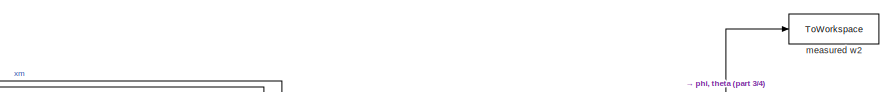
[diagram: root canvas - part 1/4, top center region]
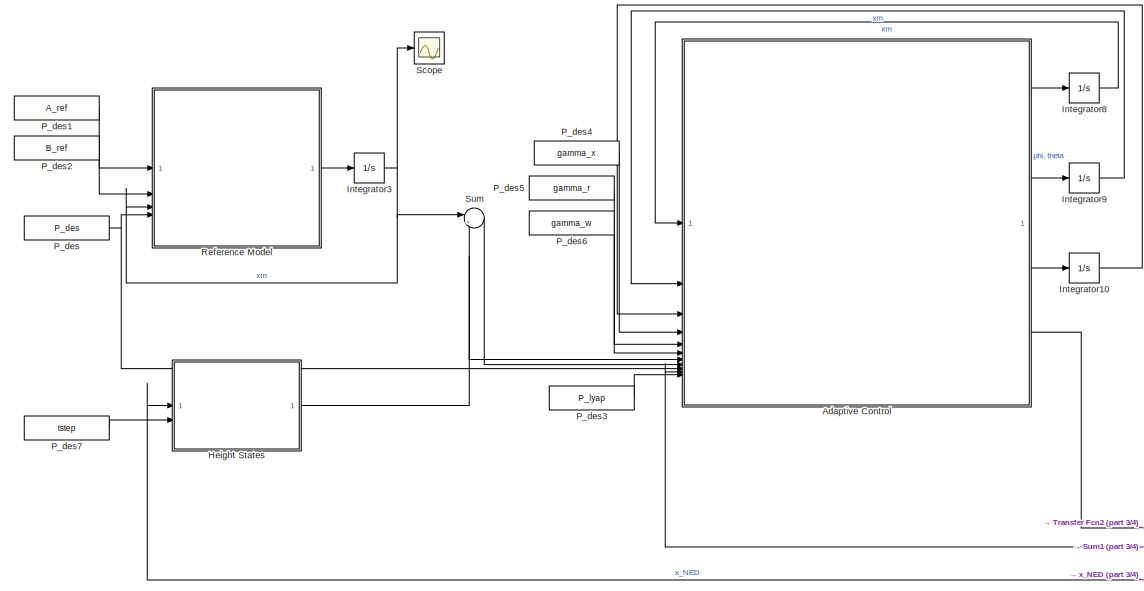
[diagram: root canvas - part 2/4, middle left region]
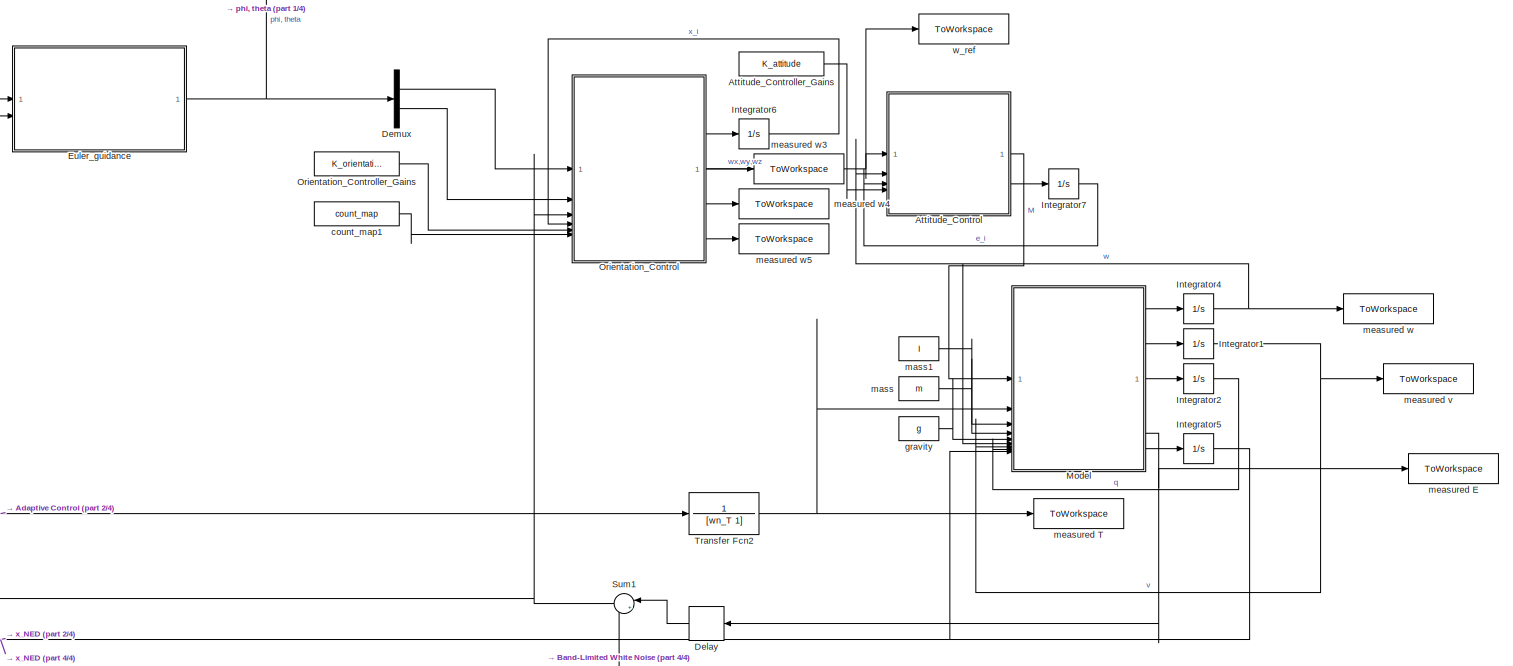
[diagram: root canvas - part 3/4, right side, full height]
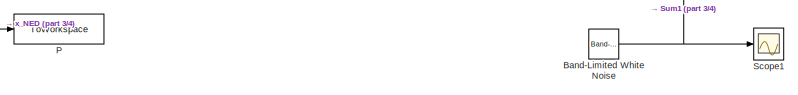
[diagram: root canvas - part 4/4, bottom center region]
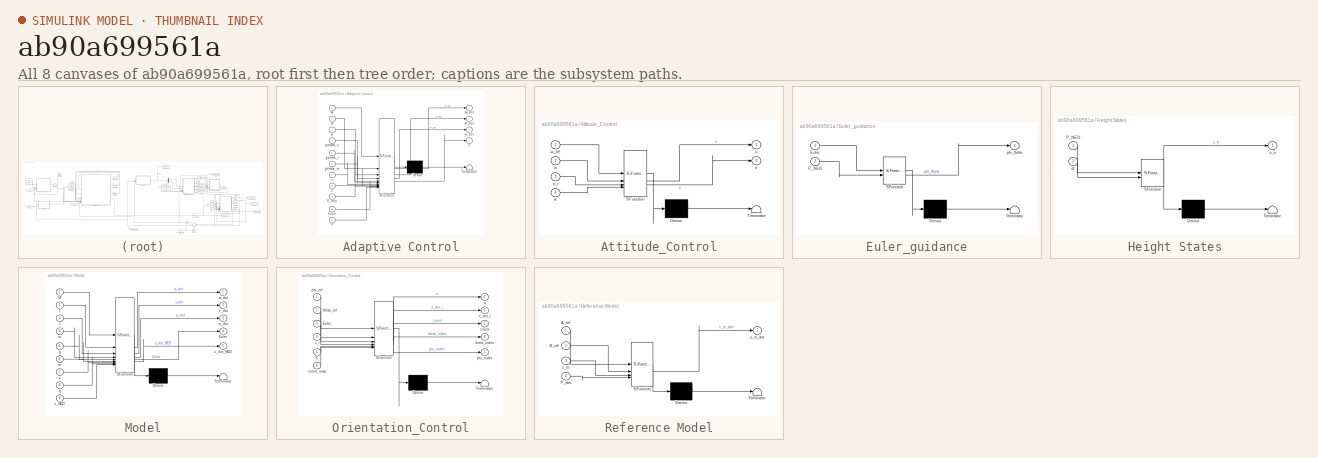
[diagram: thumbnail index - all 8 canvases of the model, root first then tree order]
MODEL slx_ab90a699561a
KIND model
CONFIG AbsTol = auto
CONFIG EnableMultiTasking = on
CONFIG FixedStep = tstep
CONFIG MaxStep = auto
CONFIG MinStep = auto
CONFIG RelTol = 1e-3
CONFIG SampleTimeConstraint = Unconstrained
CONFIG SolverName = ode4
CONFIG StartTime = 0.0
CONFIG StopTime = tf
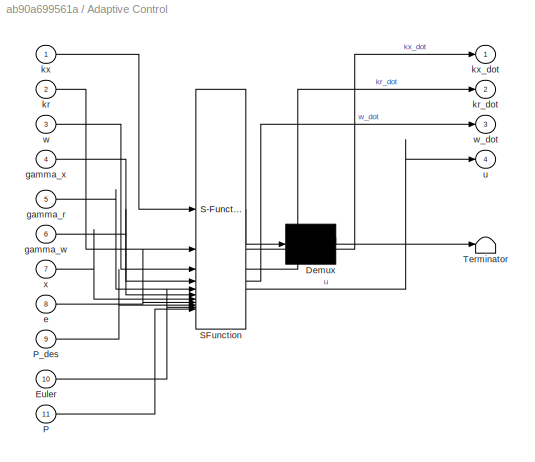
BLOCK [SubSystem] Adaptive Control
  ErrorFcn = Stateflow.Translate.translate
  PermitHierarchicalResolution = ExplicitOnly
  SFBlockType = MATLAB Function
  TreatAsAtomicUnit = on
BLOCK [Demux] Adaptive Control/ Demux 
  Outputs = 1
BLOCK [S-Function] Adaptive Control/ SFunction 
  EnableBusSupport = on
  FunctionName = sf_sfun
  PortCounts = [11 5]
  SFcnIsStateOwnerBlock = off
  SFunctionDeploymentMode = off
  Tag = Stateflow S-Function 7
BLOCK [Terminator] Adaptive Control/ Terminator 
BLOCK [Inport] Adaptive Control/Euler
  Port = 10
BLOCK [Inport] Adaptive Control/P
  Port = 11
BLOCK [Inport] Adaptive Control/P_des
  Port = 9
BLOCK [Inport] Adaptive Control/e
  Port = 8
BLOCK [Inport] Adaptive Control/gamma_r
  Port = 5
BLOCK [Inport] Adaptive Control/gamma_w
  Port = 6
BLOCK [Inport] Adaptive Control/gamma_x
  Port = 4
BLOCK [Inport] Adaptive Control/kr
  Port = 2
BLOCK [Outport] Adaptive Control/kr_dot
  Port = 2
BLOCK [Inport] Adaptive Control/kx
BLOCK [Outport] Adaptive Control/kx_dot
BLOCK [Outport] Adaptive Control/u
  Port = 4
BLOCK [Inport] Adaptive Control/w
  Port = 3
BLOCK [Outport] Adaptive Control/w_dot
  Port = 3
BLOCK [Inport] Adaptive Control/x
  Port = 7
BLOCK [SubSystem] Attitude_Control
  ErrorFcn = Stateflow.Translate.translate
  PermitHierarchicalResolution = ExplicitOnly
  SFBlockType = MATLAB Function
  TreatAsAtomicUnit = on
BLOCK [Demux] Attitude_Control/ Demux 
  Outputs = 1
BLOCK [S-Function] Attitude_Control/ SFunction 
  EnableBusSupport = on
  FunctionName = sf_sfun
  PortCounts = [4 3]
  SFcnIsStateOwnerBlock = off
  SFunctionDeploymentMode = off
  Tag = Stateflow S-Function 5
BLOCK [Terminator] Attitude_Control/ Terminator 
BLOCK [Inport] Attitude_Control/K
  Port = 4
BLOCK [Outport] Attitude_Control/e
  Port = 2
BLOCK [Inport] Attitude_Control/e_i
  Port = 3
BLOCK [Outport] Attitude_Control/u
BLOCK [Inport] Attitude_Control/w
  Port = 2
BLOCK [Inport] Attitude_Control/w_ref
BLOCK [Constant] Attitude_Controller_Gains
  Value = K_attitude
BLOCK [Reference] Band-Limited White Noise  REF=simulink/Sources/Band-Limited
White Noise
  SourceBlock = simulink/Sources/Band-Limited\nWhite Noise
  SourceType = Band-Limited White Noise.
BLOCK [Delay] Delay
  DelayLength = 1
  InitialCondition = zeros(3,1)
  InputPortMap = u0
BLOCK [Demux] Demux
  Outputs = 2
BLOCK [SubSystem] Euler_guidance
  ErrorFcn = Stateflow.Translate.translate
  PermitHierarchicalResolution = ExplicitOnly
  SFBlockType = MATLAB Function
  TreatAsAtomicUnit = on
BLOCK [Demux] Euler_guidance/ Demux 
  Outputs = 1
BLOCK [S-Function] Euler_guidance/ SFunction 
  EnableBusSupport = on
  FunctionName = sf_sfun
  PortCounts = [2 2]
  SFcnIsStateOwnerBlock = off
  SFunctionDeploymentMode = off
  Tag = Stateflow S-Function 3
BLOCK [Terminator] Euler_guidance/ Terminator 
BLOCK [Inport] Euler_guidance/Euler
BLOCK [Inport] Euler_guidance/P_NED
  Port = 2
BLOCK [Outport] Euler_guidance/phi_theta
BLOCK [SubSystem] Height States
  ErrorFcn = Stateflow.Translate.translate
  PermitHierarchicalResolution = ExplicitOnly
  SFBlockType = MATLAB Function
  TreatAsAtomicUnit = on
BLOCK [Demux] Height States/ Demux 
  Outputs = 1
BLOCK [S-Function] Height States/ SFunction 
  EnableBusSupport = on
  FunctionName = sf_sfun
  PortCounts = [2 2]
  SFcnIsStateOwnerBlock = off
  SFunctionDeploymentMode = off
  Tag = Stateflow S-Function 6
BLOCK [Terminator] Height States/ Terminator 
BLOCK [Inport] Height States/P_NED
BLOCK [Inport] Height States/dt
  Port = 2
BLOCK [Outport] Height States/x_h
BLOCK [Integrator] Integrator1
  InitialCondition = zeros(3,1)
BLOCK [Integrator] Integrator10
BLOCK [Integrator] Integrator2
  InitialCondition = [1;0;0;0]
BLOCK [Integrator] Integrator3
  InitialCondition = zeros(2,1)
BLOCK [Integrator] Integrator4
  InitialCondition = zeros(3,1)
BLOCK [Integrator] Integrator5
  InitialCondition = zeros(3,1)
BLOCK [Integrator] Integrator6
  InitialCondition = zeros(3,1)
BLOCK [Integrator] Integrator7
  InitialCondition = zeros(3,1)
BLOCK [Integrator] Integrator8
  InitialCondition = zeros(2,1)
BLOCK [Integrator] Integrator9
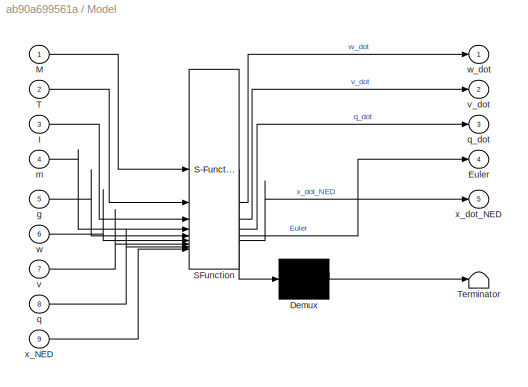
BLOCK [SubSystem] Model
  ErrorFcn = Stateflow.Translate.translate
  PermitHierarchicalResolution = ExplicitOnly
  SFBlockType = MATLAB Function
  TreatAsAtomicUnit = on
BLOCK [Demux] Model/ Demux 
  Outputs = 1
BLOCK [S-Function] Model/ SFunction 
  EnableBusSupport = on
  FunctionName = sf_sfun
  PortCounts = [9 6]
  SFcnIsStateOwnerBlock = off
  SFunctionDeploymentMode = off
  Tag = Stateflow S-Function 4
BLOCK [Terminator] Model/ Terminator 
BLOCK [Outport] Model/Euler
  Port = 4
BLOCK [Inport] Model/I
  Port = 3
BLOCK [Inport] Model/M
BLOCK [Inport] Model/T
  Port = 2
BLOCK [Inport] Model/g
  Port = 5
BLOCK [Inport] Model/m
  Port = 4
BLOCK [Inport] Model/q
  Port = 8
BLOCK [Outport] Model/q_dot
  Port = 3
BLOCK [Inport] Model/v
  Port = 7
BLOCK [Outport] Model/v_dot
  Port = 2
BLOCK [Inport] Model/w
  Port = 6
BLOCK [Outport] Model/w_dot
BLOCK [Inport] Model/x_NED
  Port = 9
BLOCK [Outport] Model/x_dot_NED
  Port = 5
BLOCK [SubSystem] Orientation_Control
  ErrorFcn = Stateflow.Translate.translate
  PermitHierarchicalResolution = ExplicitOnly
  SFBlockType = MATLAB Function
  TreatAsAtomicUnit = on
BLOCK [Demux] Orientation_Control/ Demux 
  Outputs = 1
BLOCK [S-Function] Orientation_Control/ SFunction 
  EnableBusSupport = on
  FunctionName = sf_sfun
  PortCounts = [6 6]
  SFcnIsStateOwnerBlock = off
  SFunctionDeploymentMode = off
  Tag = Stateflow S-Function 2
BLOCK [Terminator] Orientation_Control/ Terminator 
BLOCK [Inport] Orientation_Control/Euler
  Port = 3
BLOCK [Inport] Orientation_Control/K
  Port = 5
BLOCK [Outport] Orientation_Control/count
  Port = 3
BLOCK [Inport] Orientation_Control/count_map
  Port = 6
BLOCK [Outport] Orientation_Control/phi_index
  Port = 5
BLOCK [Inport] Orientation_Control/phi_ref
BLOCK [Outport] Orientation_Control/theta_index
  Port = 4
BLOCK [Inport] Orientation_Control/theta_ref
  Port = 2
BLOCK [Outport] Orientation_Control/u
BLOCK [Outport] Orientation_Control/x_dot_i
  Port = 2
BLOCK [Inport] Orientation_Control/x_i
  Port = 4
BLOCK [Constant] Orientation_Controller_Gains
  Value = K_orientation
BLOCK [ToWorkspace] P
  FixptAsFi = on
  MaxDataPoints = inf
  SampleTime = -1
  SaveFormat = Structure
  VariableName = P
BLOCK [Constant] P_des
  Value = P_des
BLOCK [Constant] P_des1
  Value = A_ref
BLOCK [Constant] P_des2
  Value = B_ref
BLOCK [Constant] P_des3
  Value = P_lyap
BLOCK [Constant] P_des4
  Value = gamma_x
BLOCK [Constant] P_des5
  Value = gamma_r
BLOCK [Constant] P_des6
  Value = gamma_w
BLOCK [Constant] P_des7
  Value = tstep
BLOCK [SubSystem] Reference Model
  ErrorFcn = Stateflow.Translate.translate
  PermitHierarchicalResolution = ExplicitOnly
  SFBlockType = MATLAB Function
  TreatAsAtomicUnit = on
BLOCK [Demux] Reference Model/ Demux 
  Outputs = 1
BLOCK [S-Function] Reference Model/ SFunction 
  EnableBusSupport = on
  FunctionName = sf_sfun
  PortCounts = [4 2]
  SFcnIsStateOwnerBlock = off
  SFunctionDeploymentMode = off
  Tag = Stateflow S-Function 1
BLOCK [Terminator] Reference Model/ Terminator 
BLOCK [Inport] Reference Model/A_ref
BLOCK [Inport] Reference Model/B_ref
  Port = 2
BLOCK [Inport] Reference Model/P_des
  Port = 4
BLOCK [Inport] Reference Model/x_m
  Port = 3
BLOCK [Outport] Reference Model/x_m_dot
BLOCK [Scope] Scope
  Floating = off
  NumInputPorts = 1
  ScopeSpecificationString = Simulink.scopes.TimeScopeBlockCfg('CurrentConfiguration', extmgr.ConfigurationSet(extmgr.Configuration('Core','General UI',true),extmgr.Configuration('Core','Source UI',true),extmgr.Configuration('Sources','WiredSimulink',true,'DataLogging',true,'DataLoggingVariableName','Model','DataLoggingSaveFormat','Array'),extmgr.Configuration('Visuals','Time Domain',true,'SerializedDisplays',{struct('MinYLim...<+1416ch>
BLOCK [Scope] Scope1
  Floating = off
  NumInputPorts = 1
  ScopeSpecificationString = Simulink.scopes.TimeScopeBlockCfg('CurrentConfiguration', extmgr.ConfigurationSet(extmgr.Configuration('Core','General UI',true),extmgr.Configuration('Core','Source UI',true),extmgr.Configuration('Sources','WiredSimulink',true,'DataLogging',true,'DataLoggingVariableName','Model1','DataLoggingSaveFormat','Array'),extmgr.Configuration('Visuals','Time Domain',true,'SerializedDisplays',{struct('MinYLi...<+1490ch>
BLOCK [Sum] Sum
  Inputs = |+-
BLOCK [Sum] Sum1
  Inputs = |++
BLOCK [TransferFcn] Transfer Fcn2
  Denominator = [wn_T 1]
  Numerator = 1
BLOCK [Constant] count_map1
  Value = count_map
BLOCK [Constant] gravity
  Value = g
BLOCK [Constant] mass
  Value = m
BLOCK [Constant] mass1
  Value = I
BLOCK [ToWorkspace] measured E
  FixptAsFi = on
  MaxDataPoints = inf
  SampleTime = -1
  SaveFormat = Structure
  VariableName = Euler
BLOCK [ToWorkspace] measured T
  FixptAsFi = on
  MaxDataPoints = inf
  SampleTime = -1
  SaveFormat = Structure
  VariableName = Thrust_real
BLOCK [ToWorkspace] measured v
  FixptAsFi = on
  MaxDataPoints = inf
  SampleTime = -1
  SaveFormat = Structure
  VariableName = v
BLOCK [ToWorkspace] measured w
  FixptAsFi = on
  MaxDataPoints = inf
  SampleTime = -1
  SaveFormat = Structure
  VariableName = w
BLOCK [ToWorkspace] measured w2
  FixptAsFi = on
  MaxDataPoints = inf
  SampleTime = -1
  SaveFormat = Structure
  VariableName = phi_theta_des
BLOCK [ToWorkspace] measured w3
  FixptAsFi = on
  MaxDataPoints = inf
  SampleTime = -1
  SaveFormat = Structure
  VariableName = count_a
BLOCK [ToWorkspace] measured w4
  FixptAsFi = on
  MaxDataPoints = inf
  SampleTime = -1
  SaveFormat = Structure
  VariableName = theta_index
BLOCK [ToWorkspace] measured w5
  FixptAsFi = on
  MaxDataPoints = inf
  SampleTime = -1
  SaveFormat = Structure
  VariableName = phi_index
BLOCK [ToWorkspace] w_ref
  FixptAsFi = on
  MaxDataPoints = inf
  SampleTime = -1
  SaveFormat = Structure
  VariableName = w_ref
LINE Adaptive Control:1 -> Integrator8:1
LINE Adaptive Control:2 -> Integrator9:1
LINE Adaptive Control:3 -> Integrator10:1
LINE Adaptive Control:4 -> Transfer Fcn2:1
LINE Attitude_Control:1 -> Model:1
LINE Attitude_Control:2 -> Integrator7:1
LINE Attitude_Controller_Gains:1 -> Attitude_Control:4
NET Band-Limited White Noise:1 -> Scope1:1, Sum1:2
LINE Delay:1 -> Sum1:1
LINE Demux:1 -> Orientation_Control:1
LINE Demux:2 -> Orientation_Control:2
NET Euler_guidance:1 -> Demux:1, measured w2:1
NET Height States:1 -> Adaptive Control:7, Sum:2
LINE Integrator10:1 -> Adaptive Control:3
NET Integrator1:1 -> Model:7, measured v:1
LINE Integrator2:1 -> Model:8
NET Integrator3:1 -> Reference Model:3, Scope:1, Sum:1
NET Integrator4:1 -> Attitude_Control:2, Model:6, measured w:1
NET Integrator5:1 -> Euler_guidance:2, Height States:1, Model:9, P:1
LINE Integrator6:1 -> Orientation_Control:4
LINE Integrator7:1 -> Attitude_Control:3
LINE Integrator8:1 -> Adaptive Control:1
LINE Integrator9:1 -> Adaptive Control:2
LINE Model:1 -> Integrator4:1
LINE Model:2 -> Integrator1:1
LINE Model:3 -> Integrator2:1
NET Model:4 -> Delay:1, measured E:1
LINE Model:5 -> Integrator5:1
NET Orientation_Control:1 -> Attitude_Control:1, w_ref:1
LINE Orientation_Control:2 -> Integrator6:1
LINE Orientation_Control:3 -> measured w3:1
LINE Orientation_Control:4 -> measured w4:1
LINE Orientation_Control:5 -> measured w5:1
LINE Orientation_Controller_Gains:1 -> Orientation_Control:5
LINE P_des1:1 -> Reference Model:1
LINE P_des2:1 -> Reference Model:2
LINE P_des3:1 -> Adaptive Control:11
LINE P_des4:1 -> Adaptive Control:4
LINE P_des5:1 -> Adaptive Control:5
LINE P_des6:1 -> Adaptive Control:6
LINE P_des7:1 -> Height States:2
NET P_des:1 -> Adaptive Control:9, Reference Model:4
LINE Reference Model:1 -> Integrator3:1
NET Sum1:1 -> Adaptive Control:10, Euler_guidance:1, Orientation_Control:3
LINE Sum:1 -> Adaptive Control:8
NET Transfer Fcn2:1 -> Model:2, measured T:1
LINE count_map1:1 -> Orientation_Control:6
LINE gravity:1 -> Model:5
LINE mass1:1 -> Model:3
LINE mass:1 -> Model:4
note: NET lines group one-source signal fan-out (src -> all destinations, sorted); 1:1 wires keep LINE
CHART Height States states=1 transitions=1
  STATE_LABEL 'eML_blk_kernel()'
  STATE_LABEL 'SCRIPT:\nfunction x_h = fcn(P_NED, dt)\n    persistent h_last;\n\n    h = -1*P_NED(3);\n    if isempty(h_last)\n        h_last = h;\n    end\n    h_dot = (h - h_last)/dt;\n    x_h = [h;h_dot];\n    h_last = h;\nend\n'
CHART Adaptive Control states=1 transitions=1
  STATE_LABEL 'eML_blk_kernel()'
  STATE_LABEL "SCRIPT:\nfunction [kx_dot, kr_dot, w_dot, u] = fcn(kx, kr, w, gamma_x, gamma_r, gamma_w, x, e, P_des, Euler, P)\n    % kx : 2x2 * 2x1 * 1x2 * 2x2 * 2x1 -> 2x1\n    % kr : 1x1 * 1x1 * 1x2 * 2x2 * 2x1 -> 1x1\n    % w : 1x1 * 1x1 * 1x2 * 2x2 * 2x1 -> 1x1\n    B = [0;1];\n    r = P_des(3);\n    phi_x = cos(Euler(1))*cos(Euler(2));\n    kx_dot = gamma_x*x*e'*P*B;\n    kr_dot = gamma_r*r*e'*P*B;\n    w_dot = gamm...<+112ch>"
CHART Reference Model states=1 transitions=1
  STATE_LABEL 'eML_blk_kernel()'
  STATE_LABEL 'SCRIPT:\nfunction x_m_dot = fcn(A_ref, B_ref, x_m, P_des)\n    r = P_des(3);\n    x_m_dot = A_ref*x_m + B_ref*r;\nend\n'
CHART Orientation_Control states=1 transitions=1
  STATE_LABEL 'eML_blk_kernel()'
  STATE_LABEL 'SCRIPT:\nfunction [u, x_dot_i, count, theta_index, phi_index] = fcn(phi_ref, theta_ref, Euler, x_i, K, count_map)\n    phi_m = Euler(1)*180/pi;\n    theta_m = Euler(2)*180/pi;\n    theta = -20:5:20;\n    phi = -20:5:20;\n    theta_index = 1;\n    phi_index = 1;\n    for i = 1:length(theta)\n        if abs(theta_m-theta(i)) <= 2.5\n            theta_index = i;\n            break;\n        end\n    end\n    for i...<+288ch>'
CHART Euler_guidance states=1 transitions=1
  STATE_LABEL 'eML_blk_kernel()'
  STATE_LABEL 'SCRIPT:\nfunction phi_theta = fcn(Euler, P_NED)\n    % Want to map e_P_NED to Euler angles, psi is constrained to 0 by\n    % default\n    phi_theta = zeros(2,1);\nend\n'
CHART Model states=1 transitions=1
  STATE_LABEL 'eML_blk_kernel()'
  STATE_LABEL 'SCRIPT:\nfunction [w_dot, v_dot, q_dot, Euler, x_dot_NED] = fcn(M, T, I, m, g, w, v, q, x_NED)\n    phi = atan2(2*(q(1)*q(2) + q(3)*q(4)),1-2*(q(2)^2+q(3)^2));\n    theta = asin(2*(q(1)*q(3)-q(2)*q(4)));\n    psi = atan2(2*(q(1)*q(4)+q(2)*q(3)), 1-2*(q(3)^2+q(4)^2));\n\n    u = -1.*q(2:4);\n    t = 2*cross(u, v);\n    x_dot_NED = v + q(1)*t + cross(u, t);\n\n    Euler = [phi;theta;psi];\n    \n    F_ground = ...<+615ch>'
CHART Attitude_Control states=1 transitions=1
  STATE_LABEL 'eML_blk_kernel()'
  STATE_LABEL 'SCRIPT:\nfunction [u, e] = fcn(w_ref, w, e_i, K)\n    persistent e_last;\n    if isempty(e_last)\n        e_last = zeros(3,1);\n    end\n    e = w_ref - w;\n    e_d = e - e_last;\n    u = zeros(3,1);\n    for i = 1:3\n        u(i) = K(1)*e(i) + K(2)*e_i(i) + K(3)*e_d(i);\n    end\n    e_last = e;\nend\n'
CHART  states=0 transitions=0
CHART  states=0 transitions=0
CHART  states=0 transitions=0
CHART  states=0 transitions=0
CHART  states=0 transitions=0
CHART  states=0 transitions=0
CHART  states=0 transitions=0
